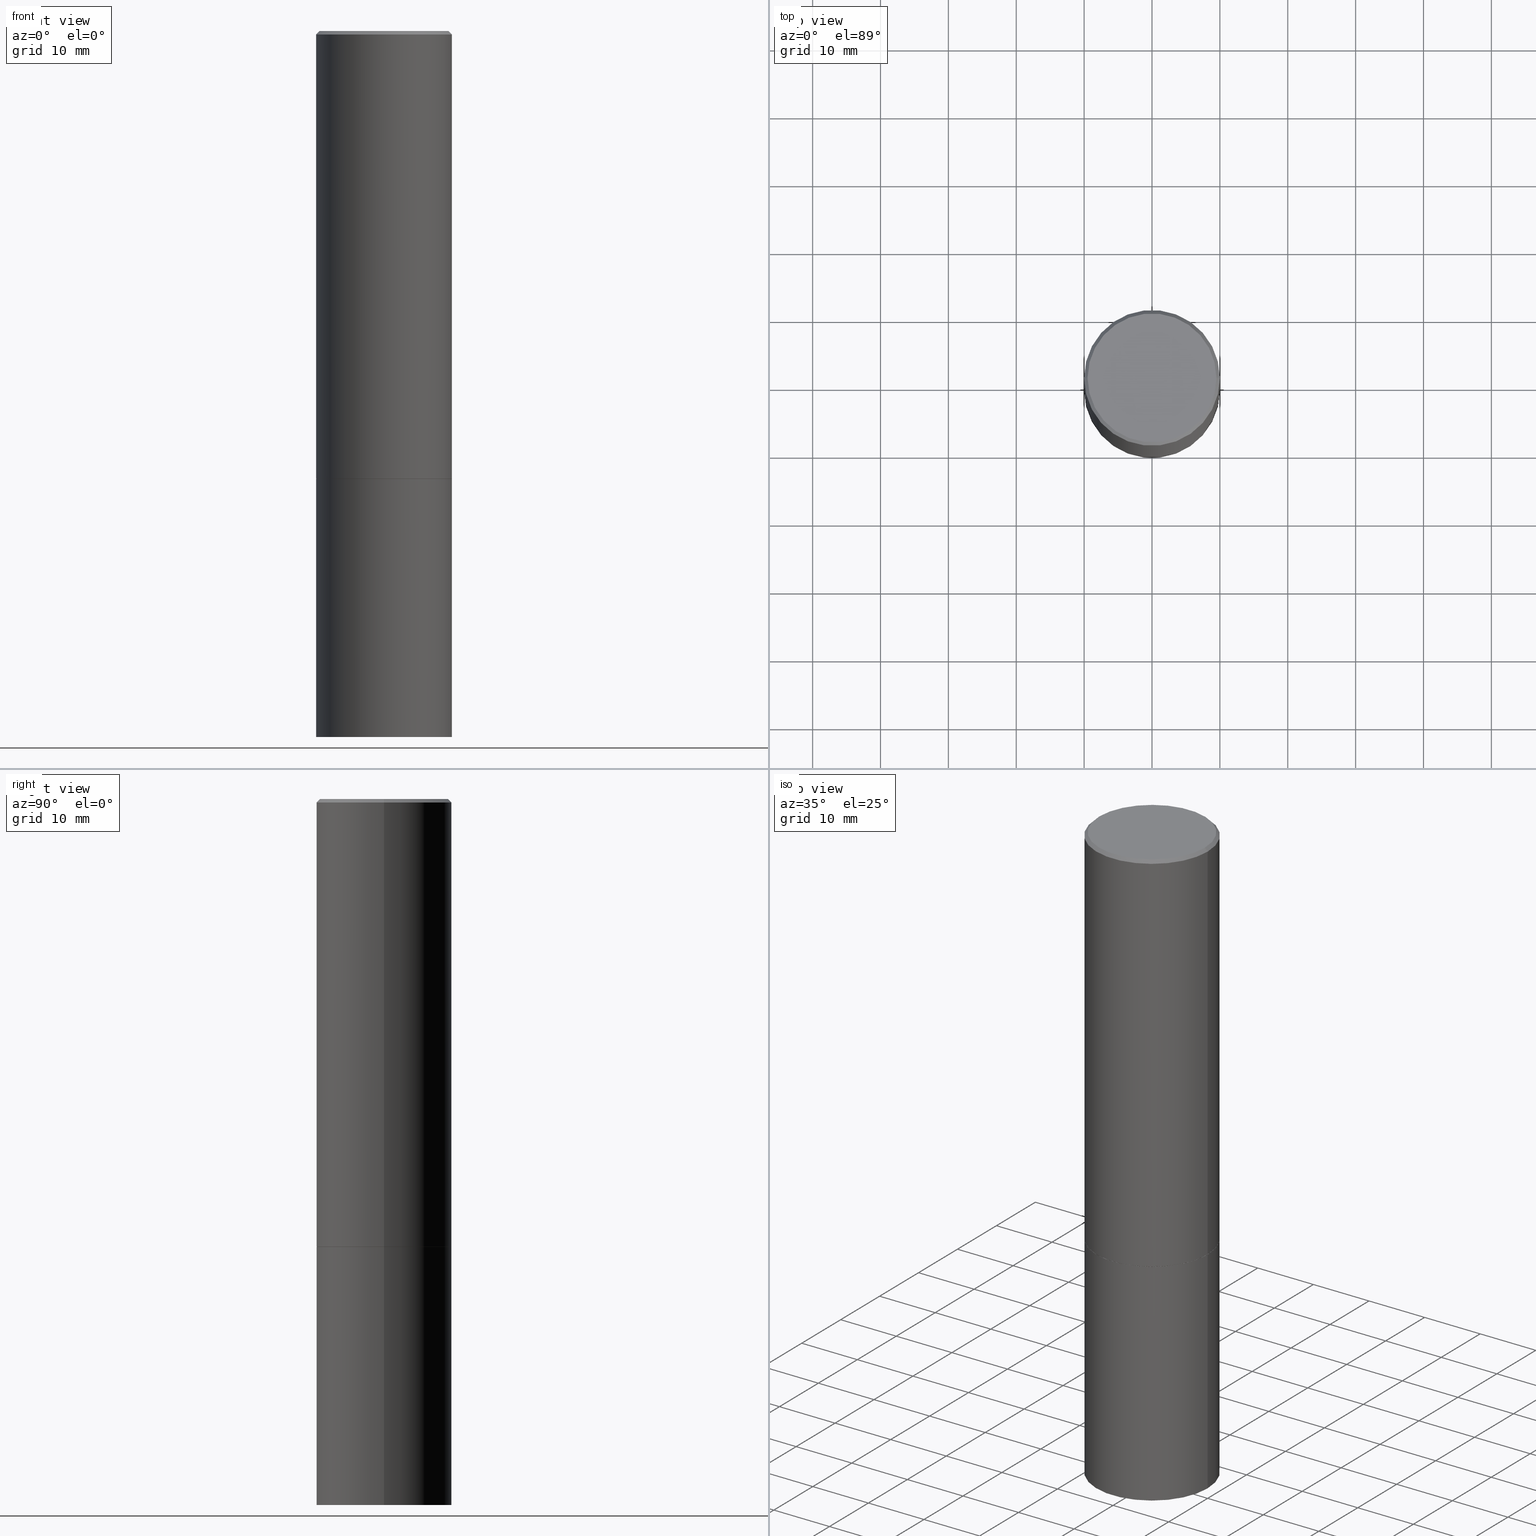
[diagram: canonical four-view strip — front | top / right | iso, engineering-drawing reading convention]
A machine part, canonical four-view strip (front | top / right | iso — engineering-drawing reading convention). The complete STEP part file that produces these views, byte-faithful:
ISO-10303-21;
HEADER;
FILE_DESCRIPTION (( 'STEP AP203' ),
    '1' );
FILE_NAME ('46509.STEP',
    '2024-02-28T10:49:01',
    ( '' ),
    ( '' ),
    'SwSTEP 2.0',
    'SolidWorks 2023',
    '' );
FILE_SCHEMA (( 'CONFIG_CONTROL_DESIGN' ));
ENDSEC;

DATA;
#1 = LINE ( 'NONE', #282, #96 ) ;
#2 = CONICAL_SURFACE ( 'NONE', #177, 0.3936999999999996613, 0.7853981633974473908 ) ;
#3 = DIRECTION ( 'NONE',  ( -2.445468806185136877E-29, 3.491481338843145188E-15, 1.000000000000000000 ) ) ;
#4 = ORIENTED_EDGE ( 'NONE', *, *, #117, .T. ) ;
#5 = DIRECTION ( 'NONE',  ( -2.445468806185136597E-29, 3.491481338843145583E-15, 1.000000000000000000 ) ) ;
#6 = DATE_AND_TIME ( #199, #364 ) ;
#7 = ORIENTED_EDGE ( 'NONE', *, *, #361, .F. ) ;
#8 = ORIENTED_EDGE ( 'NONE', *, *, #252, .T. ) ;
#9 = DIRECTION ( 'NONE',  ( -2.438088387897960049E-29, 3.491481338843145188E-15, 1.000000000000000000 ) ) ;
#10 = COORDINATED_UNIVERSAL_TIME_OFFSET ( 5, 0, .BEHIND. ) ;
#11 = ORIENTED_EDGE ( 'NONE', *, *, #205, .T. ) ;
#12 = CYLINDRICAL_SURFACE ( 'NONE', #206, 0.3936999999999998279 ) ;
#13 = AXIS2_PLACEMENT_3D ( 'NONE', #200, #337, #123 ) ;
#14 = AXIS2_PLACEMENT_3D ( 'NONE', #198, #5, #63 ) ;
#15 = LINE ( 'NONE', #105, #79 ) ;
#16 = ADVANCED_FACE ( 'NONE', ( #93 ), #307, .T. ) ;
#17 = ORIENTED_EDGE ( 'NONE', *, *, #51, .F. ) ;
#18 = AXIS2_PLACEMENT_3D ( 'NONE', #233, #135, #216 ) ;
#19 = MANIFOLD_SOLID_BREP ( 'Body-Move/Copy2[2]', #281 ) ;
#20 = DIRECTION ( 'NONE',  ( 2.438088387897960049E-29, -3.491481338843145188E-15, -1.000000000000000000 ) ) ;
#21 = CARTESIAN_POINT ( 'NONE',  ( 0.3937000000000000499, -1.704506274809834471E-14, -4.094500000000000028 ) ) ;
#22 = CYLINDRICAL_SURFACE ( 'NONE', #14, 0.3937000000000000499 ) ;
#23 = ADVANCED_FACE ( 'NONE', ( #339 ), #310, .T. ) ;
#24 = FACE_OUTER_BOUND ( 'NONE', #221, .T. ) ;
#25 = ORGANIZATION ( 'UNSPECIFIED', 'UNSPECIFIED', '' ) ;
#26 = CC_DESIGN_PERSON_AND_ORGANIZATION_ASSIGNMENT ( #317, #127, ( #315 ) ) ;
#27 = DIRECTION ( 'NONE',  ( 1.000000000000000000, -6.982962677686267499E-15, 0.000000000000000000 ) ) ;
#28 = APPLICATION_PROTOCOL_DEFINITION ( 'international standard', 'config_control_design', 1994, #91 ) ;
#29 = CIRCLE ( 'NONE', #251, 0.3926999999999999935 ) ;
#30 = EDGE_LOOP ( 'NONE', ( #250, #69, #55, #316 ) ) ;
#31 = ORIENTED_EDGE ( 'NONE', *, *, #252, .F. ) ;
#32 = PERSON_AND_ORGANIZATION ( #332, #25 ) ;
#33 = DIRECTION ( 'NONE',  ( -2.445468806185136597E-29, 3.491481338843145583E-15, 1.000000000000000000 ) ) ;
#34 = ORIENTED_EDGE ( 'NONE', *, *, #356, .T. ) ;
#35 = DIRECTION ( 'NONE',  ( -2.445468806185136877E-29, 3.491481338843145188E-15, 1.000000000000000000 ) ) ;
#36 = PERSON_AND_ORGANIZATION_ROLE ( 'classification_officer' ) ;
#37 = AXIS2_PLACEMENT_3D ( 'NONE', #108, #20, #321 ) ;
#38 = PRODUCT_DEFINITION ( 'UNKNOWN', '', #315, #225 ) ;
#39 = LINE ( 'NONE', #247, #265 ) ;
#40 = DIRECTION ( 'NONE',  ( 0.7071067811868130271, -2.468850131085038979E-15, 0.7071067811862817853 ) ) ;
#41 = FACE_OUTER_BOUND ( 'NONE', #227, .T. ) ;
#42 = VERTEX_POINT ( 'NONE', #306 ) ;
#43 = AXIS2_PLACEMENT_3D ( 'NONE', #290, #235, #136 ) ;
#44 = DIRECTION ( 'NONE',  ( -2.445468806185136597E-29, 3.491481338843145583E-15, 1.000000000000000000 ) ) ;
#45 = FACE_OUTER_BOUND ( 'NONE', #92, .T. ) ;
#46 = ORIENTED_EDGE ( 'NONE', *, *, #102, .F. ) ;
#47 = CARTESIAN_POINT ( 'NONE',  ( 0.3937000000000000499, -1.182145751705511584E-14, -2.598400000000000265 ) ) ;
#48 = DIRECTION ( 'NONE',  ( 2.445468806185136597E-29, -3.491481338843145583E-15, -1.000000000000000000 ) ) ;
#49 = AXIS2_PLACEMENT_3D ( 'NONE', #348, #295, #207 ) ;
#50 = DIRECTION ( 'NONE',  ( 1.000000000000000000, -6.982962677686265133E-15, 0.000000000000000000 ) ) ;
#51 = EDGE_CURVE ( 'NONE', #184, #98, #39, .T. ) ;
#52 = DIRECTION ( 'NONE',  ( -0.7071067811865469066, 2.468850131082249961E-15, -0.7071067811865482389 ) ) ;
#53 = ADVANCED_BREP_SHAPE_REPRESENTATION ( '46509', ( #254, #19, #201 ), #350 ) ;
#54 = CARTESIAN_POINT ( 'NONE',  ( 4.890937612370296805E-31, -6.982962677686323656E-17, -0.02000000000000009409 ) ) ;
#55 = ORIENTED_EDGE ( 'NONE', *, *, #102, .T. ) ;
#56 = LOCAL_TIME ( 5, 49, 1.000000000000000000, #141 ) ;
#57 = CYLINDRICAL_SURFACE ( 'NONE', #343, 0.3936999999999998279 ) ;
#58 = DATE_TIME_ROLE ( 'classification_date' ) ;
#59 = LENGTH_MEASURE_WITH_UNIT ( LENGTH_MEASURE( 0.02539999999999999897 ), #217 );
#60 = ADVANCED_FACE ( 'NONE', ( #152 ), #161, .T. ) ;
#61 = AXIS2_PLACEMENT_3D ( 'NONE', #327, #33, #183 ) ;
#62 = ORIENTED_EDGE ( 'NONE', *, *, #194, .T. ) ;
#63 = DIRECTION ( 'NONE',  ( 1.000000000000000000, -6.982962677686265922E-15, 4.876176775795935793E-29 ) ) ;
#64 = ADVANCED_FACE ( 'NONE', ( #365 ), #126, .F. ) ;
#65 = VERTEX_POINT ( 'NONE', #185 ) ;
#66 = DIRECTION ( 'NONE',  ( 2.445468806185136597E-29, -3.491481338843145583E-15, -1.000000000000000000 ) ) ;
#67 = CARTESIAN_POINT ( 'NONE',  ( -0.3937000000000000499, 2.797406750687514786E-15, -1.936584745033356735E-29 ) ) ;
#68 = COORDINATED_UNIVERSAL_TIME_OFFSET ( 5, 0, .BEHIND. ) ;
#69 = ORIENTED_EDGE ( 'NONE', *, *, #204, .T. ) ;
#70 = CALENDAR_DATE ( 2024, 28, 2 ) ;
#71 = DATE_AND_TIME ( #70, #224 ) ;
#72 = EDGE_CURVE ( 'NONE', #362, #268, #208, .T. ) ;
#73 = DIRECTION ( 'NONE',  ( 1.000000000000000000, -6.982962677686266711E-15, 4.876212485538980163E-29 ) ) ;
#74 = AXIS2_PLACEMENT_3D ( 'NONE', #154, #9, #347 ) ;
#75 = CC_DESIGN_APPROVAL ( #261, ( #301 ) ) ;
#76 = PRODUCT_RELATED_PRODUCT_CATEGORY ( 'detail', '', ( #110 ) ) ;
#77 = CARTESIAN_POINT ( 'NONE',  ( 0.3926999999999999935, -1.181447455437742825E-14, -2.598400000000000265 ) ) ;
#78 = DIMENSIONAL_EXPONENTS ( 1.000000000000000000, 0.000000000000000000, 0.000000000000000000, 0.000000000000000000, 0.000000000000000000, 0.000000000000000000, 0.000000000000000000 ) ;
#79 = VECTOR ( 'NONE', #52, 39.37007874015748143 ) ;
#80 = CARTESIAN_POINT ( 'NONE',  ( -0.3937000000000000499, -1.771894877456511079E-15, -2.597400000000001263 ) ) ;
#81 = ADVANCED_FACE ( 'NONE', ( #134 ), #353, .T. ) ;
#82 = FACE_OUTER_BOUND ( 'NONE', #173, .T. ) ;
#83 = CARTESIAN_POINT ( 'NONE',  ( 1.001297202692504215E-28, -1.429587034189326149E-14, -4.094500000000000028 ) ) ;
#84 = CIRCLE ( 'NONE', #122, 0.3936999999999996613 ) ;
#85 = PERSON_AND_ORGANIZATION_ROLE ( 'design_owner' ) ;
#86 = ORIENTED_EDGE ( 'NONE', *, *, #278, .F. ) ;
#87 = PERSON_AND_ORGANIZATION ( #332, #25 ) ;
#88 = VERTEX_POINT ( 'NONE', #213 ) ;
#89 = CLOSED_SHELL ( 'NONE', ( #145, #23, #286, #81 ) ) ;
#90 = CC_DESIGN_APPROVAL ( #342, ( #315 ) ) ;
#91 = APPLICATION_CONTEXT ( 'configuration controlled 3d designs of mechanical parts and assemblies' ) ;
#92 = EDGE_LOOP ( 'NONE', ( #142, #11 ) ) ;
#93 = FACE_OUTER_BOUND ( 'NONE', #30, .T. ) ;
#94 = PERSON_AND_ORGANIZATION ( #332, #25 ) ;
#95 = DIRECTION ( 'NONE',  ( 0.7071067811865469066, -7.319954787623254468E-15, -0.7071067811865482389 ) ) ;
#96 = VECTOR ( 'NONE', #95, 39.37007874015748143 ) ;
#97 = ORIENTED_EDGE ( 'NONE', *, *, #72, .F. ) ;
#98 = VERTEX_POINT ( 'NONE', #156 ) ;
#99 = CC_DESIGN_DATE_AND_TIME_ASSIGNMENT ( #148, #245, ( #38 ) ) ;
#100 = DIRECTION ( 'NONE',  ( 1.000000000000000000, -6.982962677686265922E-15, 4.876176775795935793E-29 ) ) ;
#101 = APPROVAL_PERSON_ORGANIZATION ( #226, #342, #120 ) ;
#102 = EDGE_CURVE ( 'NONE', #42, #259, #326, .T. ) ;
#103 = DIRECTION ( 'NONE',  ( -2.445468806185136597E-29, 3.491481338843145583E-15, 1.000000000000000000 ) ) ;
#104 = ADVANCED_FACE ( 'NONE', ( #255 ), #12, .T. ) ;
#105 = CARTESIAN_POINT ( 'NONE',  ( -0.3936999999999996613, 2.679362779428217552E-15, -0.02000000000000009409 ) ) ;
#106 = EDGE_LOOP ( 'NONE', ( #238, #8, #279, #288 ) ) ;
#107 = CARTESIAN_POINT ( 'NONE',  ( 0.000000000000000000, 0.000000000000000000, 0.000000000000000000 ) ) ;
#108 = CARTESIAN_POINT ( 'NONE',  ( 2.609533152651354648E-15, 0.3736999999999996436, -1.302632320080632041E-15 ) ) ;
#109 = APPROVAL_PERSON_ORGANIZATION ( #193, #249, #138 ) ;
#110 = PRODUCT ( '46509', '46509', '', ( #218 ) ) ;
#111 = CARTESIAN_POINT ( 'NONE',  ( 6.354306145991459756E-29, -9.072265110850031044E-15, -2.598400000000000265 ) ) ;
#112 = VERTEX_POINT ( 'NONE', #144 ) ;
#113 = DATE_AND_TIME ( #302, #132 ) ;
#114 = AXIS2_PLACEMENT_3D ( 'NONE', #352, #214, #137 ) ;
#115 = DIRECTION ( 'NONE',  ( -2.445468806185136597E-29, 3.491481338843145583E-15, 1.000000000000000000 ) ) ;
#116 = ORIENTED_EDGE ( 'NONE', *, *, #361, .T. ) ;
#117 = EDGE_CURVE ( 'NONE', #98, #112, #170, .T. ) ;
#118 = APPLICATION_PROTOCOL_DEFINITION ( 'international standard', 'config_control_design', 1994, #178 ) ;
#119 = ORIENTED_EDGE ( 'NONE', *, *, #51, .T. ) ;
#120 = APPROVAL_ROLE ( '' ) ;
#121 = ADVANCED_FACE ( 'NONE', ( #82 ), #57, .T. ) ;
#122 = AXIS2_PLACEMENT_3D ( 'NONE', #325, #303, #264 ) ;
#123 = DIRECTION ( 'NONE',  ( 1.000000000000000000, -6.982962677686265133E-15, 0.000000000000000000 ) ) ;
#124 = ORIENTED_EDGE ( 'NONE', *, *, #328, .T. ) ;
#125 = APPROVAL_DATE_TIME ( #6, #261 ) ;
#126 = PLANE ( 'NONE',  #74 ) ;
#127 = PERSON_AND_ORGANIZATION_ROLE ( 'design_supplier' ) ;
#128 = VECTOR ( 'NONE', #40, 39.37007874015748854 ) ;
#129 = AXIS2_PLACEMENT_3D ( 'NONE', #363, #115, #220 ) ;
#130 = CARTESIAN_POINT ( 'NONE',  ( 6.354306145991459756E-29, -9.072265110850031044E-15, -2.598400000000000265 ) ) ;
#131 = EDGE_CURVE ( 'NONE', #259, #184, #215, .T. ) ;
#132 = LOCAL_TIME ( 5, 49, 1.000000000000000000, #270 ) ;
#133 = EDGE_LOOP ( 'NONE', ( #230, #223 ) ) ;
#134 = FACE_OUTER_BOUND ( 'NONE', #340, .T. ) ;
#135 = DIRECTION ( 'NONE',  ( -2.445468806185136597E-29, 3.491481338843145583E-15, 1.000000000000000000 ) ) ;
#136 = DIRECTION ( 'NONE',  ( 1.000000000000000000, -6.982962677686267499E-15, 0.000000000000000000 ) ) ;
#137 = DIRECTION ( 'NONE',  ( 1.000000000000000000, -6.982962677686266711E-15, 4.876212485538980163E-29 ) ) ;
#138 = APPROVAL_ROLE ( '' ) ;
#139 = AXIS2_PLACEMENT_3D ( 'NONE', #253, #66, #314 ) ;
#140 = VECTOR ( 'NONE', #211, 39.37007874015748143 ) ;
#141 = COORDINATED_UNIVERSAL_TIME_OFFSET ( 5, 0, .BEHIND. ) ;
#142 = ORIENTED_EDGE ( 'NONE', *, *, #318, .T. ) ;
#143 = DIRECTION ( 'NONE',  ( -2.445468806185136597E-29, 3.491481338843145583E-15, 1.000000000000000000 ) ) ;
#144 = CARTESIAN_POINT ( 'NONE',  ( 0.3936999999999996613, -2.770807688499512973E-15, -0.02000000000000009409 ) ) ;
#145 = ADVANCED_FACE ( 'NONE', ( #335 ), #22, .T. ) ;
#146 = EDGE_CURVE ( 'NONE', #184, #259, #189, .T. ) ;
#147 = DIRECTION ( 'NONE',  ( 1.000000000000000000, -6.982962677686266711E-15, 4.876176775795935793E-29 ) ) ;
#148 = DATE_AND_TIME ( #168, #56 ) ;
#149 = ORIENTED_EDGE ( 'NONE', *, *, #146, .T. ) ;
#150 = VERTEX_POINT ( 'NONE', #21 ) ;
#151 = CC_DESIGN_SECURITY_CLASSIFICATION ( #301, ( #315 ) ) ;
#152 = FACE_OUTER_BOUND ( 'NONE', #312, .T. ) ;
#153 = COORDINATED_UNIVERSAL_TIME_OFFSET ( 5, 0, .BEHIND. ) ;
#154 = CARTESIAN_POINT ( 'NONE',  ( 6.354306145991459756E-29, -9.072265110850031044E-15, -2.598400000000000265 ) ) ;
#155 = EDGE_CURVE ( 'NONE', #243, #184, #271, .T. ) ;
#156 = CARTESIAN_POINT ( 'NONE',  ( -0.3936999999999996613, 2.679362779428217552E-15, -0.02000000000000009409 ) ) ;
#157 = ORIENTED_EDGE ( 'NONE', *, *, #258, .F. ) ;
#158 = CIRCLE ( 'NONE', #61, 0.3937000000000000499 ) ;
#159 = CARTESIAN_POINT ( 'NONE',  ( 0.3937000000000000499, -2.749192406205083217E-15, 1.919750796630860172E-29 ) ) ;
#160 = LINE ( 'NONE', #159, #283 ) ;
#161 = CONICAL_SURFACE ( 'NONE', #139, 0.3936999999999996613, 0.7853981633974473908 ) ;
#162 = CONICAL_SURFACE ( 'NONE', #195, 0.3926999999999999935, 0.7853981633978239785 ) ;
#163 = DIRECTION ( 'NONE',  ( -2.445468806185136877E-29, 3.491481338843145188E-15, 1.000000000000000000 ) ) ;
#164 = DIRECTION ( 'NONE',  ( -1.000000000000000000, 6.982962677686266711E-15, 0.000000000000000000 ) ) ;
#165 = EDGE_CURVE ( 'NONE', #150, #88, #246, .T. ) ;
#166 = ORIENTED_EDGE ( 'NONE', *, *, #131, .F. ) ;
#167 = VECTOR ( 'NONE', #3, 39.37007874015748143 ) ;
#168 = CALENDAR_DATE ( 2024, 28, 2 ) ;
#169 = EDGE_CURVE ( 'NONE', #42, #243, #338, .T. ) ;
#170 = CIRCLE ( 'NONE', #266, 0.3936999999999996613 ) ;
#171 = AXIS2_PLACEMENT_3D ( 'NONE', #111, #143, #360 ) ;
#172 = DATE_AND_TIME ( #345, #240 ) ;
#173 = EDGE_LOOP ( 'NONE', ( #17, #149, #234, #341 ) ) ;
#174 = APPROVAL_ROLE ( '' ) ;
#175 = ORIENTED_EDGE ( 'NONE', *, *, #131, .T. ) ;
#176 = PERSON_AND_ORGANIZATION_ROLE ( 'creator' ) ;
#177 = AXIS2_PLACEMENT_3D ( 'NONE', #291, #48, #164 ) ;
#178 = APPLICATION_CONTEXT ( 'configuration controlled 3d designs of mechanical parts and assemblies' ) ;
#179 = CARTESIAN_POINT ( 'NONE',  ( 0.3937000000000000499, -1.181796603571627441E-14, -2.597400000000001263 ) ) ;
#180 = EDGE_CURVE ( 'NONE', #88, #150, #294, .T. ) ;
#181 = SHAPE_DEFINITION_REPRESENTATION ( #191, #53 ) ;
#182 = DIRECTION ( 'NONE',  ( -1.000000000000000000, 6.982962677686265922E-15, -4.876176775795935793E-29 ) ) ;
#183 = DIRECTION ( 'NONE',  ( 1.000000000000000000, -6.982962677686267499E-15, 0.000000000000000000 ) ) ;
#184 = VERTEX_POINT ( 'NONE', #80 ) ;
#185 = CARTESIAN_POINT ( 'NONE',  ( -0.3937000000000000499, -8.886660975684131482E-15, -2.598400000000000265 ) ) ;
#186 = CIRCLE ( 'NONE', #18, 0.3937000000000000499 ) ;
#187 = CC_DESIGN_PERSON_AND_ORGANIZATION_ASSIGNMENT ( #94, #36, ( #301 ) ) ;
#188 = ORIENTED_EDGE ( 'NONE', *, *, #180, .T. ) ;
#189 = CIRCLE ( 'NONE', #43, 0.3937000000000000499 ) ;
#190 = PLANE ( 'NONE',  #37 ) ;
#191 = PRODUCT_DEFINITION_SHAPE ( 'NONE', 'NONE',  #38 ) ;
#192 = ORIENTED_EDGE ( 'NONE', *, *, #165, .F. ) ;
#193 = PERSON_AND_ORGANIZATION ( #332, #25 ) ;
#194 = EDGE_CURVE ( 'NONE', #112, #98, #84, .T. ) ;
#195 = AXIS2_PLACEMENT_3D ( 'NONE', #130, #354, #257 ) ;
#196 = DIRECTION ( 'NONE',  ( 1.000000000000000000, -6.982962677686267499E-15, 0.000000000000000000 ) ) ;
#197 = APPROVAL_DATE_TIME ( #113, #249 ) ;
#198 = CARTESIAN_POINT ( 'NONE',  ( 0.000000000000000000, 0.000000000000000000, 0.000000000000000000 ) ) ;
#199 = CALENDAR_DATE ( 2024, 28, 2 ) ;
#200 = CARTESIAN_POINT ( 'NONE',  ( 6.354306145991459756E-29, -9.072265110850031044E-15, -2.598400000000000265 ) ) ;
#201 = AXIS2_PLACEMENT_3D ( 'NONE', #273, #366, #274 ) ;
#202 = CARTESIAN_POINT ( 'NONE',  ( 2.749192406205183007E-15, 0.3936999999999857280, -4.094500000000001805 ) ) ;
#203 = EDGE_LOOP ( 'NONE', ( #192, #323 ) ) ;
#204 = EDGE_CURVE ( 'NONE', #243, #42, #29, .T. ) ;
#205 = EDGE_CURVE ( 'NONE', #65, #319, #158, .T. ) ;
#206 = AXIS2_PLACEMENT_3D ( 'NONE', #232, #299, #244 ) ;
#207 = DIRECTION ( 'NONE',  ( -1.000000000000000000, 6.982962677686265922E-15, -4.876176775795935793E-29 ) ) ;
#208 = CIRCLE ( 'NONE', #300, 0.3736999999999996436 ) ;
#209 = AXIS2_PLACEMENT_3D ( 'NONE', #83, #355, #196 ) ;
#210 = PLANE ( 'NONE',  #49 ) ;
#211 = DIRECTION ( 'NONE',  ( -2.445468806185136877E-29, 3.491481338843145188E-15, 1.000000000000000000 ) ) ;
#212 = ORIENTED_EDGE ( 'NONE', *, *, #169, .T. ) ;
#213 = CARTESIAN_POINT ( 'NONE',  ( -0.3937000000000000499, -8.886660975684131482E-15, -4.094500000000000028 ) ) ;
#214 = DIRECTION ( 'NONE',  ( -2.445468806185136597E-29, 3.491481338843145583E-15, 1.000000000000000000 ) ) ;
#215 = CIRCLE ( 'NONE', #129, 0.3937000000000000499 ) ;
#216 = DIRECTION ( 'NONE',  ( 1.000000000000000000, -6.982962677686267499E-15, 0.000000000000000000 ) ) ;
#217 =( LENGTH_UNIT ( ) NAMED_UNIT ( * ) SI_UNIT ( $, .METRE. ) );
#218 = MECHANICAL_CONTEXT ( 'NONE', #178, 'mechanical' ) ;
#219 = DIRECTION ( 'NONE',  ( 1.000000000000000000, -6.982962677686266711E-15, 0.000000000000000000 ) ) ;
#220 = DIRECTION ( 'NONE',  ( 1.000000000000000000, -6.982962677686267499E-15, 0.000000000000000000 ) ) ;
#221 = EDGE_LOOP ( 'NONE', ( #157, #97, #116, #4 ) ) ;
#222 = ORIENTED_EDGE ( 'NONE', *, *, #258, .T. ) ;
#223 = ORIENTED_EDGE ( 'NONE', *, *, #204, .F. ) ;
#224 = LOCAL_TIME ( 5, 49, 1.000000000000000000, #153 ) ;
#225 = DESIGN_CONTEXT ( 'detailed design', #91, 'design' ) ;
#226 = PERSON_AND_ORGANIZATION ( #332, #25 ) ;
#227 = EDGE_LOOP ( 'NONE', ( #298, #34 ) ) ;
#228 = CC_DESIGN_PERSON_AND_ORGANIZATION_ASSIGNMENT ( #87, #85, ( #110 ) ) ;
#229 = ORIENTED_EDGE ( 'NONE', *, *, #205, .F. ) ;
#230 = ORIENTED_EDGE ( 'NONE', *, *, #169, .F. ) ;
#231 = AXIS2_PLACEMENT_3D ( 'NONE', #202, #311, #182 ) ;
#232 = CARTESIAN_POINT ( 'NONE',  ( 0.000000000000000000, 0.000000000000000000, 0.000000000000000000 ) ) ;
#233 = CARTESIAN_POINT ( 'NONE',  ( 6.354306145991459756E-29, -9.072265110850031044E-15, -2.598400000000000265 ) ) ;
#234 = ORIENTED_EDGE ( 'NONE', *, *, #278, .T. ) ;
#235 = DIRECTION ( 'NONE',  ( -2.445468806185136597E-29, 3.491481338843145583E-15, 1.000000000000000000 ) ) ;
#236 = EDGE_LOOP ( 'NONE', ( #212, #320, #166, #46 ) ) ;
#237 = CARTESIAN_POINT ( 'NONE',  ( -0.3926999999999999935, -6.281963787520118055E-15, -2.598400000000000265 ) ) ;
#238 = ORIENTED_EDGE ( 'NONE', *, *, #165, .T. ) ;
#239 = CARTESIAN_POINT ( 'NONE',  ( -0.3736999999999996436, 2.644447966039786297E-15, 4.268512490082039448E-18 ) ) ;
#240 = LOCAL_TIME ( 5, 49, 1.000000000000000000, #10 ) ;
#241 = PERSON_AND_ORGANIZATION ( #332, #25 ) ;
#242 = CC_DESIGN_DATE_AND_TIME_ASSIGNMENT ( #71, #58, ( #301 ) ) ;
#243 = VERTEX_POINT ( 'NONE', #346 ) ;
#244 = DIRECTION ( 'NONE',  ( 1.000000000000000000, -6.982962677686266711E-15, 4.876176775795935793E-29 ) ) ;
#245 = DATE_TIME_ROLE ( 'creation_date' ) ;
#246 = CIRCLE ( 'NONE', #256, 0.3937000000000000499 ) ;
#247 = CARTESIAN_POINT ( 'NONE',  ( -0.3936999999999998279, 2.797406750687513209E-15, -1.936584745033355614E-29 ) ) ;
#248 =( NAMED_UNIT ( * ) PLANE_ANGLE_UNIT ( ) SI_UNIT ( $, .RADIAN. ) );
#249 = APPROVAL ( #359, 'UNSPECIFIED' ) ;
#250 = ORIENTED_EDGE ( 'NONE', *, *, #155, .F. ) ;
#251 = AXIS2_PLACEMENT_3D ( 'NONE', #263, #357, #50 ) ;
#252 = EDGE_CURVE ( 'NONE', #88, #65, #287, .T. ) ;
#253 = CARTESIAN_POINT ( 'NONE',  ( 4.890937612370296805E-31, -6.982962677686323656E-17, -0.02000000000000009409 ) ) ;
#254 = MANIFOLD_SOLID_BREP ( 'Body-Move/Copy2[1]', #89 ) ;
#255 = FACE_OUTER_BOUND ( 'NONE', #284, .T. ) ;
#256 = AXIS2_PLACEMENT_3D ( 'NONE', #297, #269, #27 ) ;
#257 = DIRECTION ( 'NONE',  ( 1.000000000000000000, -6.982962677686265133E-15, 0.000000000000000000 ) ) ;
#258 = EDGE_CURVE ( 'NONE', #268, #112, #1, .T. ) ;
#259 = VERTEX_POINT ( 'NONE', #179 ) ;
#260 = ADVANCED_FACE ( 'NONE', ( #41 ), #190, .F. ) ;
#261 = APPROVAL ( #313, 'UNSPECIFIED' ) ;
#262 = CARTESIAN_POINT ( 'NONE',  ( 0.3736999999999996436, -2.667287895133365992E-15, 4.268512490118863228E-18 ) ) ;
#263 = CARTESIAN_POINT ( 'NONE',  ( 6.354306145991459756E-29, -9.072265110850031044E-15, -2.598400000000000265 ) ) ;
#264 = DIRECTION ( 'NONE',  ( 1.000000000000000000, -6.982962677686266711E-15, 0.000000000000000000 ) ) ;
#265 = VECTOR ( 'NONE', #35, 39.37007874015748143 ) ;
#266 = AXIS2_PLACEMENT_3D ( 'NONE', #54, #331, #219 ) ;
#267 = PERSON_AND_ORGANIZATION_ROLE ( 'creator' ) ;
#268 = VERTEX_POINT ( 'NONE', #262 ) ;
#269 = DIRECTION ( 'NONE',  ( -2.445468806185136597E-29, 3.491481338843145583E-15, 1.000000000000000000 ) ) ;
#270 = COORDINATED_UNIVERSAL_TIME_OFFSET ( 5, 0, .BEHIND. ) ;
#271 = LINE ( 'NONE', #237, #358 ) ;
#272 = DIRECTION ( 'NONE',  ( -2.445468806185136597E-29, 3.491481338843145583E-15, 1.000000000000000000 ) ) ;
#273 = CARTESIAN_POINT ( 'NONE',  ( 0.000000000000000000, 0.000000000000000000, 0.000000000000000000 ) ) ;
#274 = DIRECTION ( 'NONE',  ( 1.000000000000000000, 0.000000000000000000, 0.000000000000000000 ) ) ;
#275 = AXIS2_PLACEMENT_3D ( 'NONE', #107, #44, #100 ) ;
#276 = ORIENTED_EDGE ( 'NONE', *, *, #194, .F. ) ;
#277 = APPROVAL_DATE_TIME ( #172, #342 ) ;
#278 = EDGE_CURVE ( 'NONE', #259, #112, #324, .T. ) ;
#279 = ORIENTED_EDGE ( 'NONE', *, *, #318, .F. ) ;
#280 = SECURITY_CLASSIFICATION_LEVEL ( 'unclassified' ) ;
#281 = CLOSED_SHELL ( 'NONE', ( #322, #104, #60, #292, #121, #16, #64, #260 ) ) ;
#282 = CARTESIAN_POINT ( 'NONE',  ( 0.3936999999999996613, -2.770807688499512973E-15, -0.02000000000000009409 ) ) ;
#283 = VECTOR ( 'NONE', #163, 39.37007874015748143 ) ;
#284 = EDGE_LOOP ( 'NONE', ( #175, #119, #276, #86 ) ) ;
#285 = APPROVAL_STATUS ( 'not_yet_approved' ) ;
#286 = ADVANCED_FACE ( 'NONE', ( #45 ), #210, .F. ) ;
#287 = LINE ( 'NONE', #67, #167 ) ;
#288 = ORIENTED_EDGE ( 'NONE', *, *, #328, .F. ) ;
#289 = APPROVAL_PERSON_ORGANIZATION ( #304, #261, #174 ) ;
#290 = CARTESIAN_POINT ( 'NONE',  ( 6.351860677185276395E-29, -9.068773629511191193E-15, -2.597400000000001263 ) ) ;
#291 = CARTESIAN_POINT ( 'NONE',  ( 4.890937612370296805E-31, -6.982962677686323656E-17, -0.02000000000000009409 ) ) ;
#292 = ADVANCED_FACE ( 'NONE', ( #24 ), #2, .T. ) ;
#293 = CARTESIAN_POINT ( 'NONE',  ( 0.3936999999999998279, -2.749192406205082033E-15, 1.919750796630859051E-29 ) ) ;
#294 = CIRCLE ( 'NONE', #209, 0.3937000000000000499 ) ;
#295 = DIRECTION ( 'NONE',  ( 2.438088387897960049E-29, -3.491481338843145188E-15, -1.000000000000000000 ) ) ;
#296 = FACE_OUTER_BOUND ( 'NONE', #236, .T. ) ;
#297 = CARTESIAN_POINT ( 'NONE',  ( 1.001297202692504215E-28, -1.429587034189326149E-14, -4.094500000000000028 ) ) ;
#298 = ORIENTED_EDGE ( 'NONE', *, *, #72, .T. ) ;
#299 = DIRECTION ( 'NONE',  ( -2.445468806185136597E-29, 3.491481338843145583E-15, 1.000000000000000000 ) ) ;
#300 = AXIS2_PLACEMENT_3D ( 'NONE', #351, #103, #73 ) ;
#301 = SECURITY_CLASSIFICATION ( '', '', #280 ) ;
#302 = CALENDAR_DATE ( 2024, 28, 2 ) ;
#303 = DIRECTION ( 'NONE',  ( -2.445468806185136597E-29, 3.491481338843145583E-15, 1.000000000000000000 ) ) ;
#304 = PERSON_AND_ORGANIZATION ( #332, #25 ) ;
#305 =( CONVERSION_BASED_UNIT ( 'INCH', #59 ) LENGTH_UNIT ( ) NAMED_UNIT ( #78 ) );
#306 = CARTESIAN_POINT ( 'NONE',  ( 0.3926999999999999935, -1.181447455437742825E-14, -2.598400000000000265 ) ) ;
#307 = CONICAL_SURFACE ( 'NONE', #13, 0.3926999999999999935, 0.7853981633978239785 ) ;
#308 = CC_DESIGN_APPROVAL ( #249, ( #38 ) ) ;
#309 = CC_DESIGN_PERSON_AND_ORGANIZATION_ASSIGNMENT ( #241, #267, ( #38 ) ) ;
#310 = PLANE ( 'NONE',  #231 ) ;
#311 = DIRECTION ( 'NONE',  ( 2.438088387897960049E-29, -3.491481338843145188E-15, -1.000000000000000000 ) ) ;
#312 = EDGE_LOOP ( 'NONE', ( #344, #222, #62, #7 ) ) ;
#313 = APPROVAL_STATUS ( 'not_yet_approved' ) ;
#314 = DIRECTION ( 'NONE',  ( -1.000000000000000000, 6.982962677686266711E-15, 0.000000000000000000 ) ) ;
#315 = PRODUCT_DEFINITION_FORMATION_WITH_SPECIFIED_SOURCE ( 'ANY', '', #110, .NOT_KNOWN. ) ;
#316 = ORIENTED_EDGE ( 'NONE', *, *, #146, .F. ) ;
#317 = PERSON_AND_ORGANIZATION ( #332, #25 ) ;
#318 = EDGE_CURVE ( 'NONE', #319, #65, #186, .T. ) ;
#319 = VERTEX_POINT ( 'NONE', #47 ) ;
#320 = ORIENTED_EDGE ( 'NONE', *, *, #155, .T. ) ;
#321 = DIRECTION ( 'NONE',  ( -1.000000000000000000, 6.982962677686265922E-15, -4.876176775795935793E-29 ) ) ;
#322 = ADVANCED_FACE ( 'NONE', ( #296 ), #162, .T. ) ;
#323 = ORIENTED_EDGE ( 'NONE', *, *, #180, .F. ) ;
#324 = LINE ( 'NONE', #293, #140 ) ;
#325 = CARTESIAN_POINT ( 'NONE',  ( 4.890937612370296805E-31, -6.982962677686323656E-17, -0.02000000000000009409 ) ) ;
#326 = LINE ( 'NONE', #77, #128 ) ;
#327 = CARTESIAN_POINT ( 'NONE',  ( 6.354306145991459756E-29, -9.072265110850031044E-15, -2.598400000000000265 ) ) ;
#328 = EDGE_CURVE ( 'NONE', #150, #319, #160, .T. ) ;
#329 =( NAMED_UNIT ( * ) SI_UNIT ( $, .STERADIAN. ) SOLID_ANGLE_UNIT ( ) );
#330 = DIRECTION ( 'NONE',  ( -0.7071067811868130271, 7.493145998871311837E-15, 0.7071067811862817853 ) ) ;
#331 = DIRECTION ( 'NONE',  ( -2.445468806185136597E-29, 3.491481338843145583E-15, 1.000000000000000000 ) ) ;
#332 = PERSON ( 'UNSPECIFIED', 'UNSPECIFIED', 'UNSPECIFIED', ('UNSPECIFIED'), ('UNSPECIFIED'), ('UNSPECIFIED') ) ;
#333 = CARTESIAN_POINT ( 'NONE',  ( 0.000000000000000000, 0.000000000000000000, 0.000000000000000000 ) ) ;
#334 = CC_DESIGN_PERSON_AND_ORGANIZATION_ASSIGNMENT ( #32, #176, ( #315 ) ) ;
#335 = FACE_OUTER_BOUND ( 'NONE', #106, .T. ) ;
#336 = UNCERTAINTY_MEASURE_WITH_UNIT (LENGTH_MEASURE( 1.000000000000000082E-05 ), #305, 'distance_accuracy_value', 'NONE');
#337 = DIRECTION ( 'NONE',  ( -2.445468806185136597E-29, 3.491481338843145583E-15, 1.000000000000000000 ) ) ;
#338 = CIRCLE ( 'NONE', #171, 0.3926999999999999935 ) ;
#339 = FACE_OUTER_BOUND ( 'NONE', #203, .T. ) ;
#340 = EDGE_LOOP ( 'NONE', ( #31, #188, #124, #229 ) ) ;
#341 = ORIENTED_EDGE ( 'NONE', *, *, #117, .F. ) ;
#342 = APPROVAL ( #285, 'UNSPECIFIED' ) ;
#343 = AXIS2_PLACEMENT_3D ( 'NONE', #333, #272, #147 ) ;
#344 = ORIENTED_EDGE ( 'NONE', *, *, #356, .F. ) ;
#345 = CALENDAR_DATE ( 2024, 28, 2 ) ;
#346 = CARTESIAN_POINT ( 'NONE',  ( -0.3926999999999999935, -6.276665333171897231E-15, -2.598400000000000265 ) ) ;
#347 = DIRECTION ( 'NONE',  ( 1.000000000000000000, -6.982962677686265922E-15, 4.876176775795935793E-29 ) ) ;
#348 = CARTESIAN_POINT ( 'NONE',  ( 2.749192406205146325E-15, 0.3936999999999909461, -2.598400000000002041 ) ) ;
#349 = CIRCLE ( 'NONE', #114, 0.3736999999999996436 ) ;
#350 =( GEOMETRIC_REPRESENTATION_CONTEXT ( 3 ) GLOBAL_UNCERTAINTY_ASSIGNED_CONTEXT ( ( #336 ) ) GLOBAL_UNIT_ASSIGNED_CONTEXT ( ( #305, #248, #329 ) ) REPRESENTATION_CONTEXT ( 'NONE', 'WORKASPACE' ) );
#351 = CARTESIAN_POINT ( 'NONE',  ( -1.043851414335219820E-46, 1.490343170380447200E-32, 4.268512490100411279E-18 ) ) ;
#352 = CARTESIAN_POINT ( 'NONE',  ( -1.043851414335219820E-46, 1.490343170380447200E-32, 4.268512490100411279E-18 ) ) ;
#353 = CYLINDRICAL_SURFACE ( 'NONE', #275, 0.3937000000000000499 ) ;
#354 = DIRECTION ( 'NONE',  ( -2.445468806185136597E-29, 3.491481338843145583E-15, 1.000000000000000000 ) ) ;
#355 = DIRECTION ( 'NONE',  ( -2.445468806185136597E-29, 3.491481338843145583E-15, 1.000000000000000000 ) ) ;
#356 = EDGE_CURVE ( 'NONE', #268, #362, #349, .T. ) ;
#357 = DIRECTION ( 'NONE',  ( -2.445468806185136597E-29, 3.491481338843145583E-15, 1.000000000000000000 ) ) ;
#358 = VECTOR ( 'NONE', #330, 39.37007874015748854 ) ;
#359 = APPROVAL_STATUS ( 'not_yet_approved' ) ;
#360 = DIRECTION ( 'NONE',  ( 1.000000000000000000, -6.982962677686265133E-15, 0.000000000000000000 ) ) ;
#361 = EDGE_CURVE ( 'NONE', #362, #98, #15, .T. ) ;
#362 = VERTEX_POINT ( 'NONE', #239 ) ;
#363 = CARTESIAN_POINT ( 'NONE',  ( 6.351860677185276395E-29, -9.068773629511191193E-15, -2.597400000000001263 ) ) ;
#364 = LOCAL_TIME ( 5, 49, 1.000000000000000000, #68 ) ;
#365 = FACE_OUTER_BOUND ( 'NONE', #133, .T. ) ;
#366 = DIRECTION ( 'NONE',  ( 0.000000000000000000, 0.000000000000000000, 1.000000000000000000 ) ) ;
ENDSEC;
END-ISO-10303-21;
